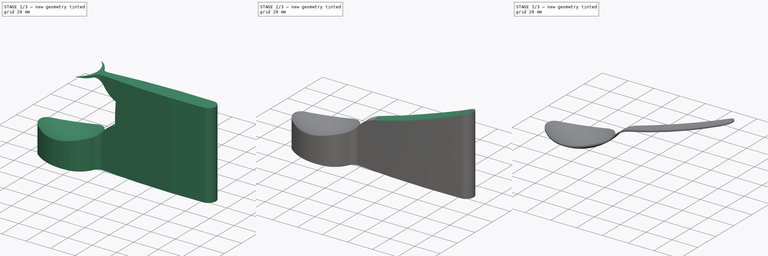
[diagram: build sequence overview — one tinted view per stage of 3, left to right]
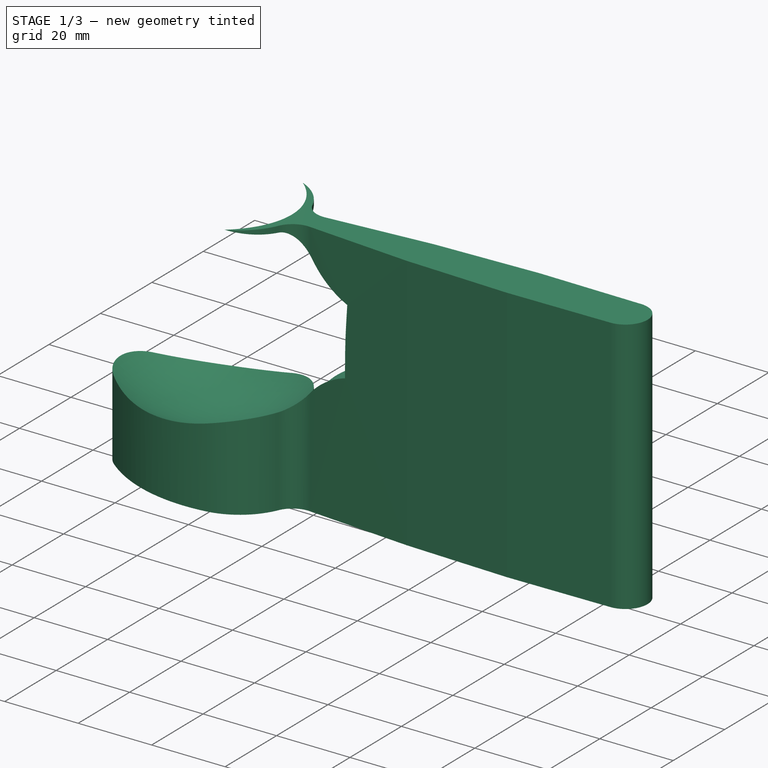
[diagram: stage 1 of 3 — iso view after this stage's code; geometry added in this stage tinted green]
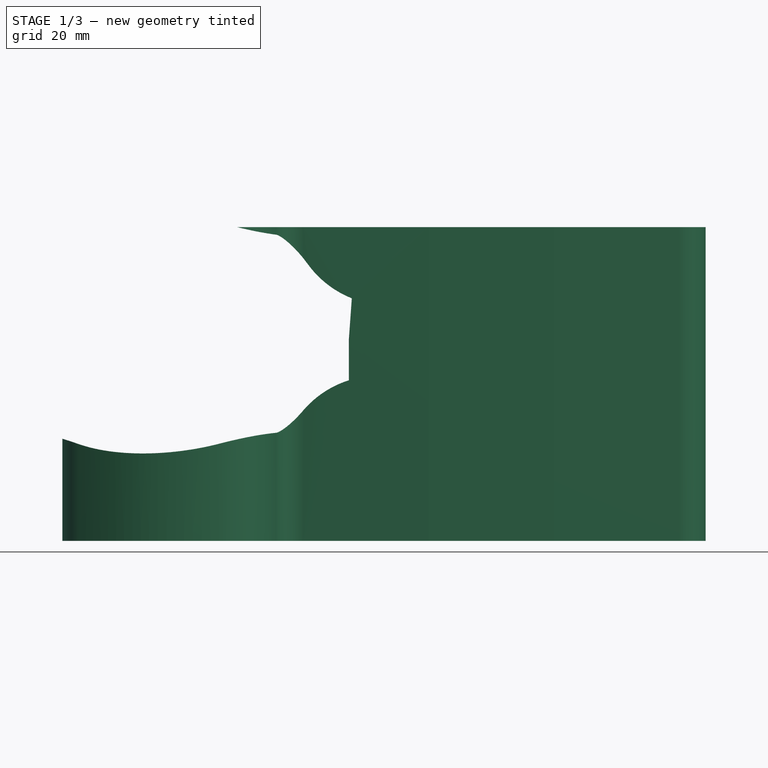
[diagram: stage 1 of 3 — front view after this stage's code; geometry added in this stage tinted green]
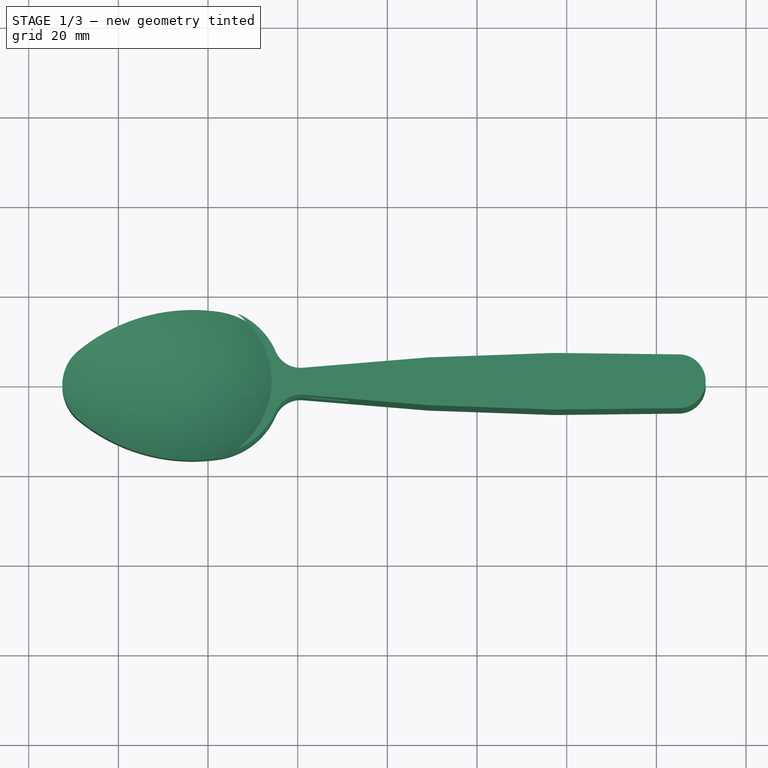
[diagram: stage 1 of 3 — top view after this stage's code; geometry added in this stage tinted green]
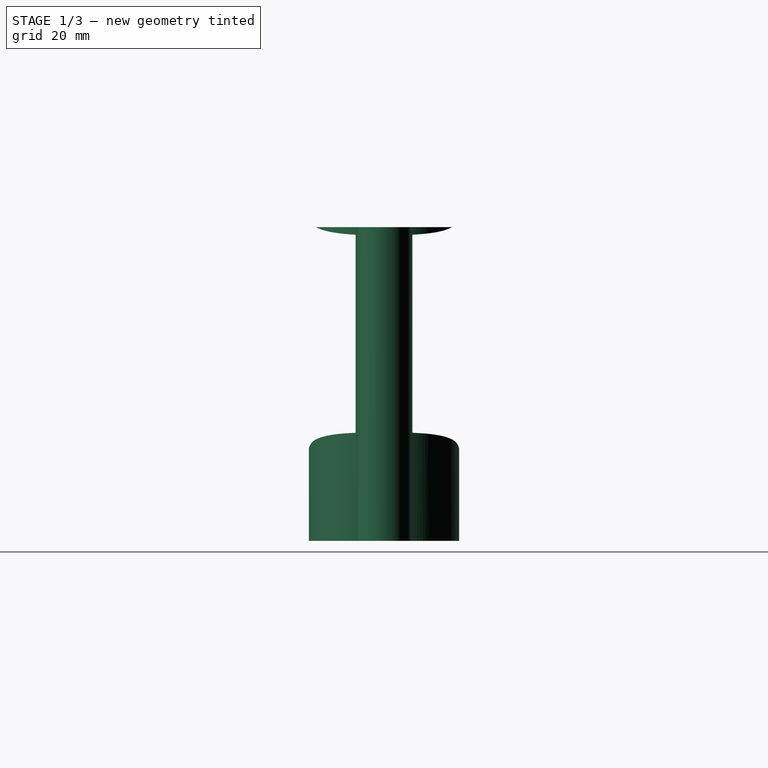
[diagram: stage 1 of 3 — right view after this stage's code; geometry added in this stage tinted green]
FCSTD DOCUMENT  (FreeCAD 0.17R13509 (Git))
Label: p
License: All rights reserved
LicenseURL: http://en.wikipedia.org/wiki/All_rights_reserved
objects: Sketcher::SketchObject×7, PartDesign::Groove×2, PartDesign::Pad×1, PartDesign::Body×1, PartDesign::FeatureBase×1, Part::Cut×1
note: 16 computed .brp shape members not serialized (recipe doc carries the construction recipe); baked Part::Feature solids carry a one-line shape summary decoded from their .brp

FEATURE [Sketcher::SketchObject] Sketch
  MapMode = 5
  Support = -> [XY_Plane]
  sketch-geometry (10):
    g0: ArcOfCircle CenterX=-22.5 CenterY=0 CenterZ=0 NormalX=0 NormalY=0 NormalZ=1 AngleXU=0 Radius=10 StartAngle=2.25569 EndAngle=4.02749
    g1: ArcOfCircle CenterX=-3.52222 CenterY=-23.2345 CenterZ=0 NormalX=0 NormalY=0 NormalZ=1 AngleXU=0 Radius=40 StartAngle=1.42035 EndAngle=2.25569
    g2: ArcOfCircle CenterX=-3.52222 CenterY=23.2345 CenterZ=0 NormalX=0 NormalY=0 NormalZ=1 AngleXU=0 Radius=40 StartAngle=4.02749 EndAngle=4.86284
    g3: ArcOfCircle CenterX=0 CenterY=0 CenterZ=0 NormalX=0 NormalY=0 NormalZ=1 AngleXU=0 Radius=16.5 StartAngle=0.411517 EndAngle=1.42035
    g4: ArcOfCircle CenterX=0 CenterY=0 CenterZ=0 NormalX=0 NormalY=0 NormalZ=1 AngleXU=0 Radius=16.5 StartAngle=4.86284 EndAngle=5.87167
    g5: ArcOfCircle CenterX=20.6216 CenterY=9 CenterZ=0 NormalX=0 NormalY=0 NormalZ=1 AngleXU=0 Radius=6 StartAngle=3.55311 EndAngle=4.81773
    g6: ArcOfCircle CenterX=20.6216 CenterY=-9 CenterZ=0 NormalX=0 NormalY=0 NormalZ=1 AngleXU=0 Radius=6 StartAngle=1.46545 EndAngle=2.73008
    g7: ArcOfCircle CenterX=84.3416 CenterY=-593.641 CenterZ=0 NormalX=0 NormalY=0 NormalZ=1 AngleXU=0 Radius=600 StartAngle=1.53601 EndAngle=1.67614
    g8: ArcOfCircle CenterX=84.3416 CenterY=593.641 CenterZ=0 NormalX=0 NormalY=0 NormalZ=1 AngleXU=0 Radius=600 StartAngle=4.60705 EndAngle=4.74717
    g9: ArcOfCircle CenterX=105 CenterY=0 CenterZ=0 NormalX=0 NormalY=0 NormalZ=1 AngleXU=0 Radius=6 StartAngle=4.74717 EndAngle=7.8192
  constraints (27):
    c: PointOnObject(g0,g-1)
    c: Coincident(g3,g-1)
    c: Coincident(g4,g-1)
    c: Radius(g0) = 10
    c: Radius(g1) = 40
    c: Equal(g1,g2)
    c: Tangent(g1,g0) = -1.5708
    c: Tangent(g0,g2) = -1.5708
    c: Radius(g3) = 16.5
    c: Equal(g3,g4)
    c: Tangent(g3,g1) = -1.5708
    c: Tangent(g2,g4) = -1.5708
    c: Tangent(g4,g6) = 1.5708
    c: Tangent(g5,g3) = 1.5708
    c: Radius(g7) = 600
    c: Equal(g7,g8)
    c: Tangent(g5,g7) = 1.5708
    c: Tangent(g6,g8) = 1.5708
    c: Radius(g9) = 6
    c: Tangent(g9,g7) = -1.5708
    c: Tangent(g8,g9) = -1.5708
    c: Vertical(g6,g5)
    c: Symmetric(g5,g6,g-1)
    c: Radius(g5) = 6
    c: DistanceX(g-1,g9) = 105
    c: DistanceX(g0,g-1) = 22.5
    c: DistanceY(g6,g5) = 18
FEATURE [Sketcher::SketchObject] Sketch001
  MapMode = 5
  Placement = pos=(0,0,0) rot=(1,0,0;1.5708rad)
  Support = -> [XZ_Plane]
  sketch-geometry (5):
    g0: ArcOfCircle CenterX=-8.92223 CenterY=20.1123 CenterZ=0 NormalX=0 NormalY=0 NormalZ=1 AngleXU=0 Radius=40 StartAngle=3.89319 EndAngle=4.08202
    g1: ArcOfCircle CenterX=-8.92223 CenterY=20.1123 CenterZ=0 NormalX=0 NormalY=0 NormalZ=1 AngleXU=0 Radius=40 StartAngle=4.08202 EndAngle=4.93734
    g2: ArcOfCircle CenterX=-8.92223 CenterY=20.1123 CenterZ=0 NormalX=0 NormalY=0 NormalZ=1 AngleXU=0 Radius=40 StartAngle=4.93734 EndAngle=5.56395
    g3: ArcOfCircle CenterX=36.2163 CenterY=-19.4164 CenterZ=0 NormalX=0 NormalY=0 NormalZ=1 AngleXU=0 Radius=20 StartAngle=1.81297 EndAngle=2.42235
    g4: ArcOfCircle CenterX=-88.4866 CenterY=485.41 CenterZ=0 NormalX=0 NormalY=0 NormalZ=1 AngleXU=0 Radius=500 StartAngle=4.95456 EndAngle=5.10974
  constraints (17):
    c: Radius(g1) = 40
    c: Equal(g1,g0)
    c: Equal(g1,g2)
    c: Tangent(g0,g1) = -1.5708
    c: Tangent(g2,g1) = -1.5708
    c: Tangent(g3,g2) = 1.5708
    c: Tangent(g3,g4) = 1.5708
    c: PointOnObject(g1,g-2)
    c: DistanceY(g0,g0) = 5
    c: PointOnObject(g3,g-1)
    c: DistanceX(g0,g-1) = 32.5
    c: DistanceX(g1,g3) = 31.42
    c: Radius(g3) = 20
    c: Radius(g4) = 500
    c: DistanceX(g-1,g4) = 105
    c: Distance(g3,g2) = 12
    c: Distance(g2,g0) = 54
FEATURE [Sketcher::SketchObject] Sketch002
  ExternalGeometry = -> [Sketch001]
  MapMode = 5
  Placement = pos=(0,0,0) rot=(0.57735,0.57735,0.57735;2.0944rad)
  Support = -> [YZ_Plane]
  sketch-geometry (1):
    g0: ArcOfCircle CenterX=0 CenterY=11.1201 CenterZ=0 NormalX=0 NormalY=0 NormalZ=1 AngleXU=0 Radius=30 StartAngle=3.89395 EndAngle=5.43355
  constraints (3):
    c: PointOnObject(g0,g-2)
    c: Radius(g0) = 30
    c: PointOnObject(g-3,g0)
FEATURE [Sketcher::SketchObject] Sketch003
  AttachmentOffset = pos=(0,0,31.42) rot=(0,0,1;0rad)
  ExternalGeometry = -> [Sketch001]
  MapMode = 5
  Placement = pos=(31.42,-4e-12,4e-12) rot=(0.57735,0.57735,0.57735;2.0944rad)
  Support = -> [YZ_Plane]
  sketch-geometry (1):
    g0: ArcOfCircle CenterX=0 CenterY=9.66515 CenterZ=0 NormalX=0 NormalY=0 NormalZ=1 AngleXU=0 Radius=10 StartAngle=3.17461 EndAngle=6.29527
  constraints (2):
    c: PointOnObject(g0,g-2)
    c: Radius(g0) = 10
FEATURE [Sketcher::SketchObject] Sketch004
  AttachmentOffset = pos=(0,24.36,105) rot=(0,0,1;0rad)
  MapMode = 5
  Placement = pos=(105,-9e-12,24.36) rot=(0.57735,0.57735,0.57735;2.0944rad)
  Support = -> [YZ_Plane]
  sketch-geometry (2):
    g0: ArcOfCircle CenterX=0 CenterY=40 CenterZ=0 NormalX=0 NormalY=0 NormalZ=1 AngleXU=0 Radius=40 StartAngle=4.2478 EndAngle=5.20035
    g1: GeomPoint X=0 Y=0 Z=0
  constraints (5):
    c: PointOnObject(g0,g-2)
    c: Radius(g0) = 40
    c: PointOnObject(g1,g0)
    c: PointOnObject(g1,g-2)
    c: Coincident(g1,g-1)
FEATURE [PartDesign::Pad] Pad
  Length = 70
  Length2 = 100
  Midplane = true
  Profile = -> Sketch
  Refine = true
  Type = 0
FEATURE [Sketcher::SketchObject] Sketch005
  MapMode = 5
  Placement = pos=(0,0,0) rot=(1,0,0;1.5708rad)
  Support = -> [XZ_Plane]
  sketch-geometry (10):
    g0: ArcOfCircle CenterX=-8.92223 CenterY=20.1123 CenterZ=0 NormalX=0 NormalY=0 NormalZ=1 AngleXU=0 Radius=40 StartAngle=3.89319 EndAngle=4.08202
    g1: ArcOfCircle CenterX=-8.92223 CenterY=20.1123 CenterZ=0 NormalX=0 NormalY=0 NormalZ=1 AngleXU=0 Radius=40 StartAngle=4.08202 EndAngle=4.93734
    g2: ArcOfCircle CenterX=-8.92223 CenterY=20.1123 CenterZ=0 NormalX=0 NormalY=0 NormalZ=1 AngleXU=0 Radius=40 StartAngle=4.93734 EndAngle=5.56395
    g3: ArcOfCircle CenterX=36.2163 CenterY=-19.4164 CenterZ=0 NormalX=0 NormalY=0 NormalZ=1 AngleXU=0 Radius=20 StartAngle=1.81297 EndAngle=2.42235
    g4: ArcOfCircle [constr] CenterX=-88.4866 CenterY=485.41 CenterZ=0 NormalX=0 NormalY=0 NormalZ=1 AngleXU=0 Radius=500 StartAngle=4.95456 EndAngle=5.10974
    g5: LineSegment StartX=-38.1461 StartY=-7.20006 StartZ=0 EndX=-38.1461 EndY=12.4799 EndZ=0
    g6: LineSegment StartX=-38.1461 StartY=12.4799 StartZ=0 EndX=31.42 EndY=10 EndZ=0
    g7: LineSegment StartX=31.42 StartY=0 StartZ=0 EndX=31.42 EndY=10 EndZ=0
    g8: GeomPoint X=0 Y=11.1201 Z=0
    g9: LineSegment [constr] StartX=31.42 StartY=10 StartZ=0 EndX=43.26 EndY=9.57792 EndZ=0
  constraints (29):
    c: Radius(g1) = 40
    c: Equal(g1,g0)
    c: Equal(g1,g2)
    c: Tangent(g0,g1) = -1.5708
    c: Tangent(g2,g1) = -1.5708
    c: Tangent(g3,g2) = 1.5708
    c: Tangent(g3,g4) = 1.5708
    c: PointOnObject(g1,g-2)
    c: DistanceY(g0,g0) = 5
    c: PointOnObject(g3,g-1)
    c: DistanceX(g0,g-1) = 32.5
    c: DistanceX(g1,g3) = 31.42
    c: Radius(g3) = 20
    c: Radius(g4) = 500
    c: DistanceX(g-1,g4) = 105
    c: Distance(g3,g2) = 12
    c: Distance(g2,g0) = 54
    c: Coincident(g5,g0)
    c: Vertical(g5)
    c: Coincident(g6,g5)
    c: Coincident(g7,g3)
    c: Coincident(g7,g6)
    c: Vertical(g7)
    c: DistanceY(g7,g7) = 10
    c: PointOnObject(g8,g6)
    c: PointOnObject(g8,g-2)
    c: DistanceY(g1,g8) = 30
    c: Tangent(g9,g6) = -1.5708
    c: DistanceX(g9,g9) = 11.84
FEATURE [PartDesign::Groove] Groove
  Angle = 360
  Axis = (11.84,0,-0.422077)
  Base = (31.42,-1e-12,10)
  BaseFeature = -> Pad
  Profile = -> Sketch005
  ReferenceAxis = -> Sketch005 [Axis0]
  Refine = true
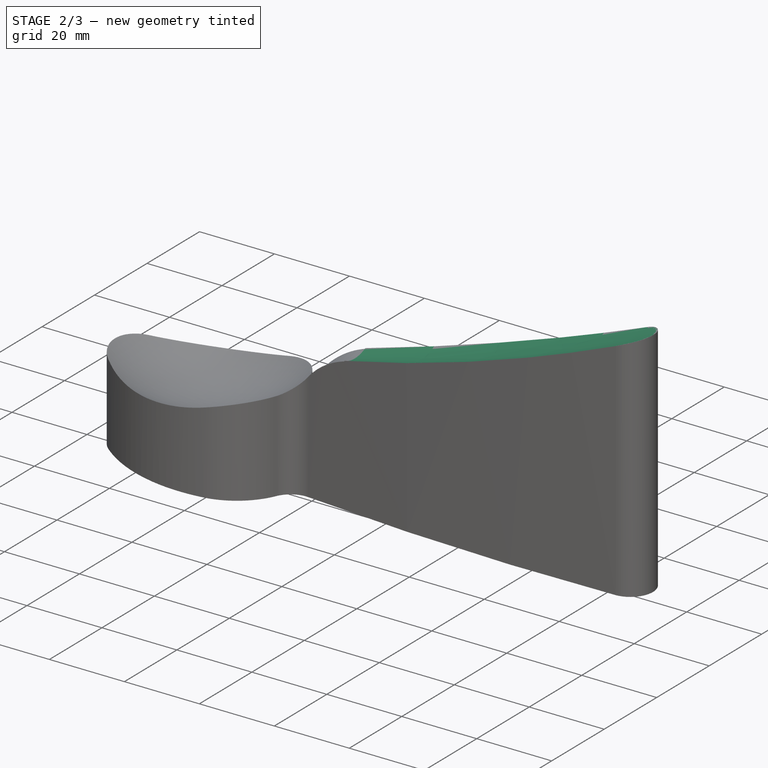
[diagram: stage 2 of 3 — iso view after this stage's code; geometry added in this stage tinted green]
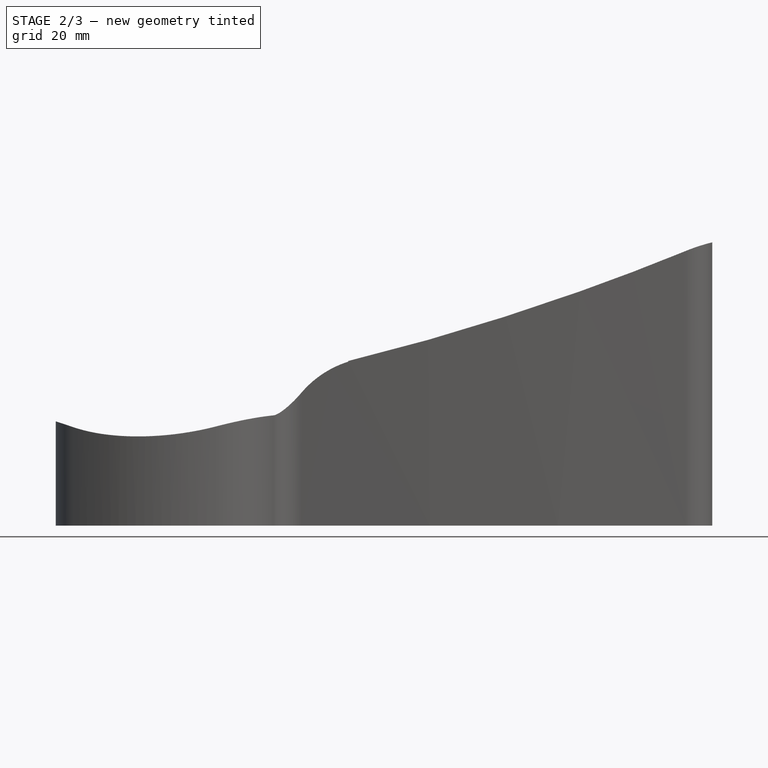
[diagram: stage 2 of 3 — front view after this stage's code; geometry added in this stage tinted green]
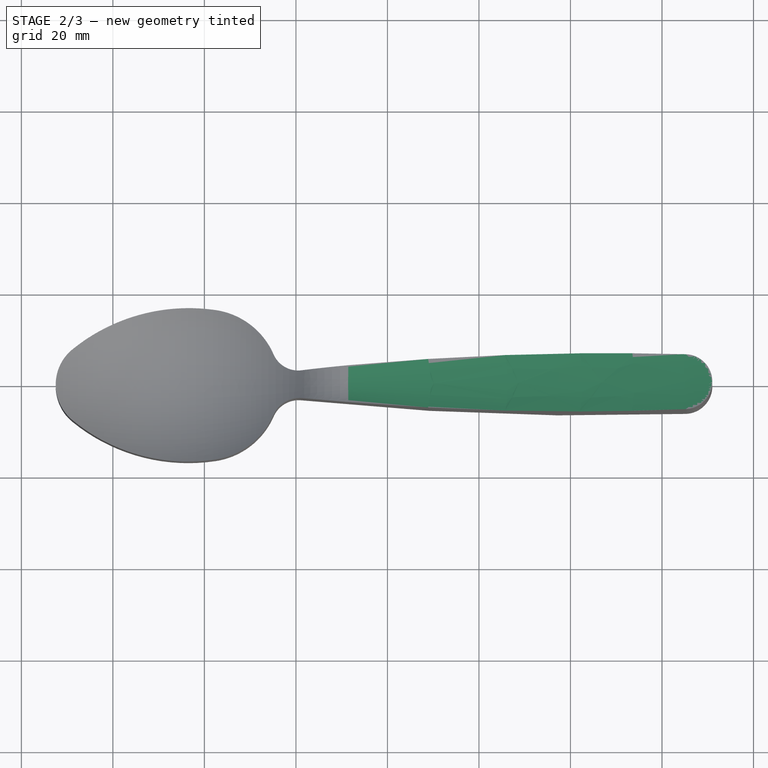
[diagram: stage 2 of 3 — top view after this stage's code; geometry added in this stage tinted green]
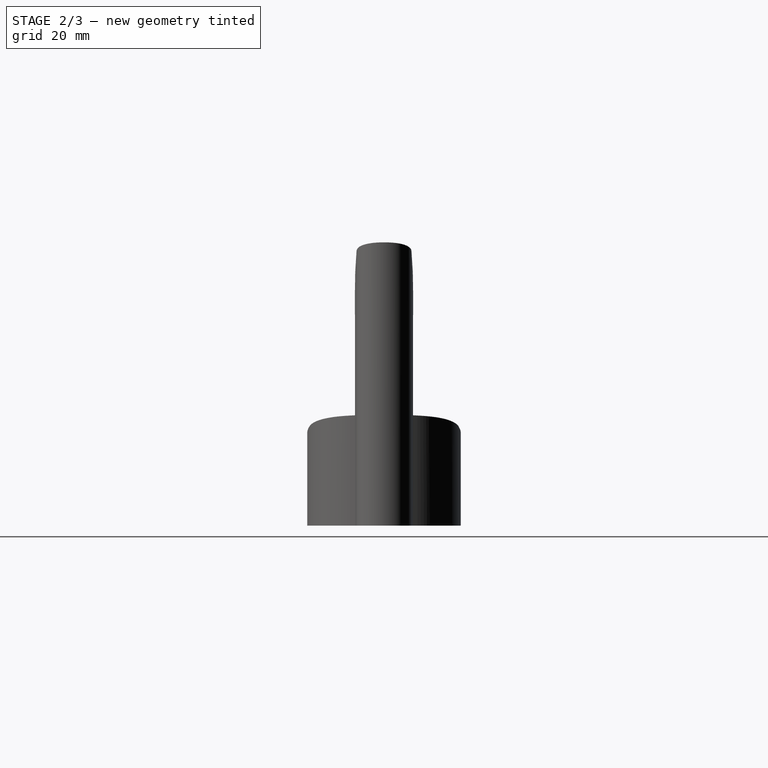
[diagram: stage 2 of 3 — right view after this stage's code; geometry added in this stage tinted green]
FEATURE [Sketcher::SketchObject] Sketch006
  ExternalGeometry = -> [Sketch003]
  MapMode = 5
  Placement = pos=(0,0,0) rot=(1,0,0;1.5708rad)
  Support = -> [XZ_Plane]
  sketch-geometry (12):
    g0: ArcOfCircle [constr] CenterX=-8.92223 CenterY=20.1123 CenterZ=0 NormalX=0 NormalY=0 NormalZ=1 AngleXU=0 Radius=40 StartAngle=3.89319 EndAngle=4.08202
    g1: ArcOfCircle [constr] CenterX=-8.92223 CenterY=20.1123 CenterZ=0 NormalX=0 NormalY=0 NormalZ=1 AngleXU=0 Radius=40 StartAngle=4.08202 EndAngle=4.93734
    g2: ArcOfCircle [constr] CenterX=-8.92223 CenterY=20.1123 CenterZ=0 NormalX=0 NormalY=0 NormalZ=1 AngleXU=0 Radius=40 StartAngle=4.93734 EndAngle=5.56395
    g3: ArcOfCircle CenterX=36.2163 CenterY=-19.4164 CenterZ=0 NormalX=0 NormalY=0 NormalZ=1 AngleXU=0 Radius=20 StartAngle=1.81297 EndAngle=2.42235
    g4: ArcOfCircle CenterX=-88.4866 CenterY=485.41 CenterZ=0 NormalX=0 NormalY=0 NormalZ=1 AngleXU=0 Radius=500 StartAngle=4.95456 EndAngle=5.10974
    g5: LineSegment StartX=21.1701 StartY=-6.24015 StartZ=0 EndX=21.1701 EndY=2.42694 EndZ=0
    g6: LineSegment StartX=21.1701 StartY=2.42694 StartZ=0 EndX=137.46 EndY=88.3469 EndZ=0
    g7: ArcOfCircle CenterX=-88.4866 CenterY=485.41 CenterZ=0 NormalX=0 NormalY=0 NormalZ=1 AngleXU=0 Radius=500 StartAngle=5.10974 EndAngle=5.18128
    g8: GeomPoint X=105 Y=64.364 Z=0
    g9: LineSegment StartX=137.46 StartY=88.3469 StartZ=0 EndX=137.46 EndY=39.3735 EndZ=0
    g10: LineSegment [constr] StartX=31.42 StartY=10 StartZ=0 EndX=31.42 EndY=0 EndZ=0
    g11: LineSegment [constr] StartX=21.1701 StartY=2.42694 StartZ=0 EndX=13.5615 EndY=-3.19459 EndZ=0
  constraints (37):
    c: Radius(g1) = 40
    c: Equal(g1,g0)
    c: Equal(g1,g2)
    c: Tangent(g0,g1) = -1.5708
    c: Tangent(g2,g1) = -1.5708
    c: Tangent(g3,g2) = 1.5708
    c: Tangent(g3,g4) = 1.5708
    c: PointOnObject(g1,g-2)
    c: DistanceY(g0,g0) = 5
    c: PointOnObject(g3,g-1)
    c: DistanceX(g0,g-1) = 32.5
    c: DistanceX(g1,g3) = 31.42
    c: Radius(g3) = 20
    c: Radius(g4) = 500
    c: DistanceX(g-1,g4) = 105
    c: Distance(g3,g2) = 12
    c: Distance(g2,g0) = 54
    c: Coincident(g5,g2)
    c: Vertical(g5)
    c: Coincident(g6,g5)
    c: Radius(g7) = 500
    c: Tangent(g7,g4) = -1.5708
    c: PointOnObject(g8,g6)
    c: Vertical(g8,g4)
    c: DistanceY(g4,g8) = 40
    c: Vertical(g9)
    c: Coincident(g6,g9)
    c: Coincident(g9,g7)
    c: PointOnObject(g10,g6)
    c: Vertical(g10)
    c: PointOnObject(g10,g4)
    c: PointOnObject(g10,g-1)
    c: DistanceY(g10,g10) = 10
    c: Coincident(g11,g5)
    c: Tangent(g11,g6)
    c: Distance(g11) = 9.46
    c: DistanceX(g4,g7) = 32.46
FEATURE [PartDesign::Groove] Groove001
  Angle = 360
  Axis = (-7.60855,1e-12,-5.62152)
  Base = (21.1701,0,2.42694)
  BaseFeature = -> Groove
  Profile = -> Sketch006
  ReferenceAxis = -> Sketch006 [Axis1]
  Refine = true
  Reversed = true
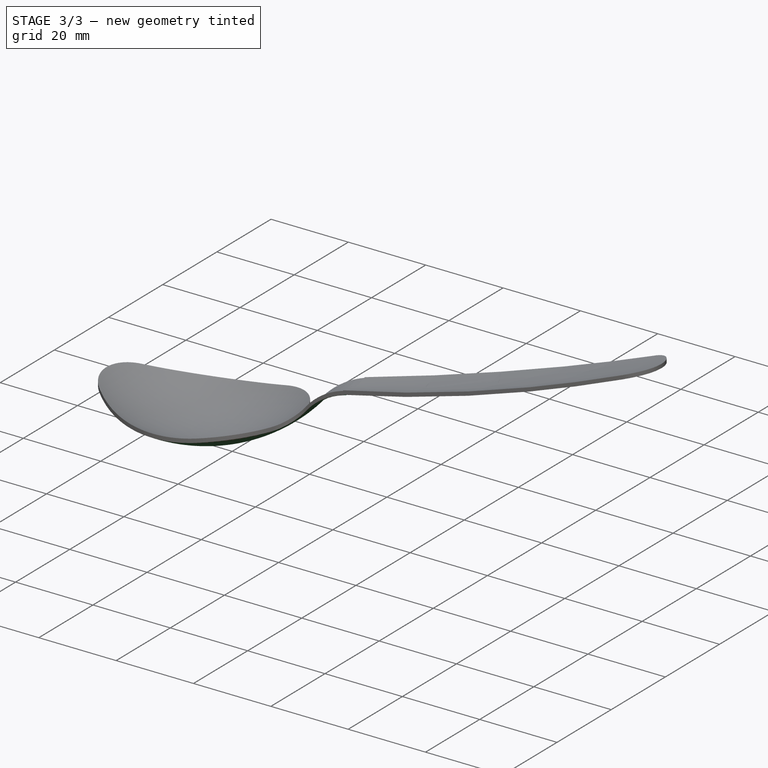
[diagram: stage 3 of 3 — iso view after this stage's code; geometry added in this stage tinted green]
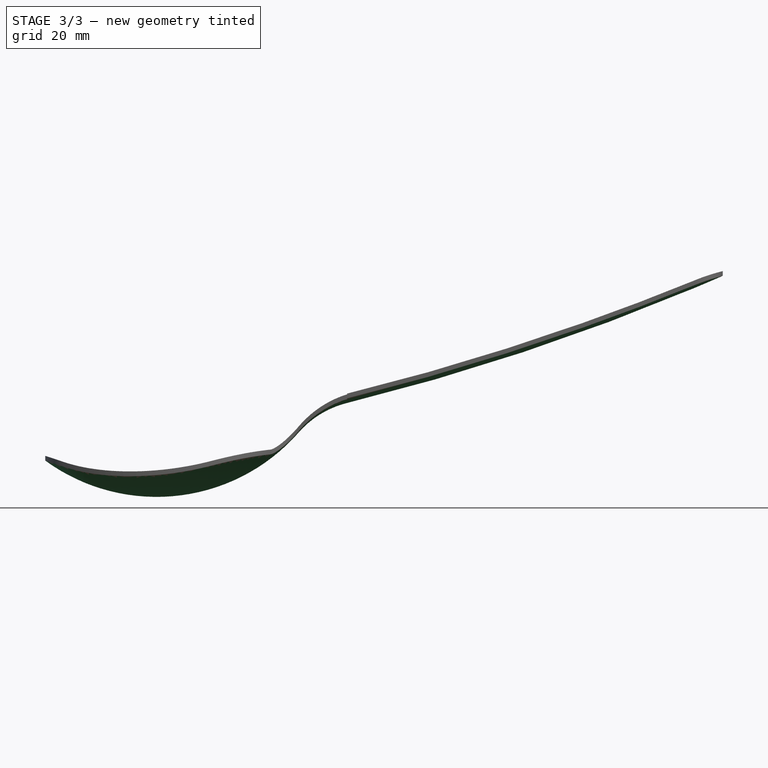
[diagram: stage 3 of 3 — front view after this stage's code; geometry added in this stage tinted green]
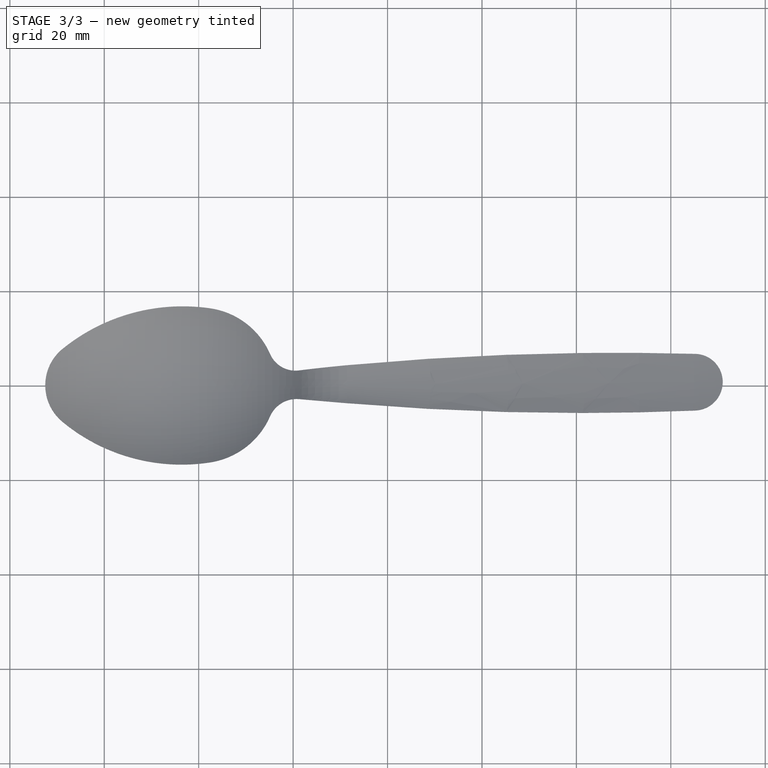
[diagram: stage 3 of 3 — top view after this stage's code; geometry added in this stage tinted green]
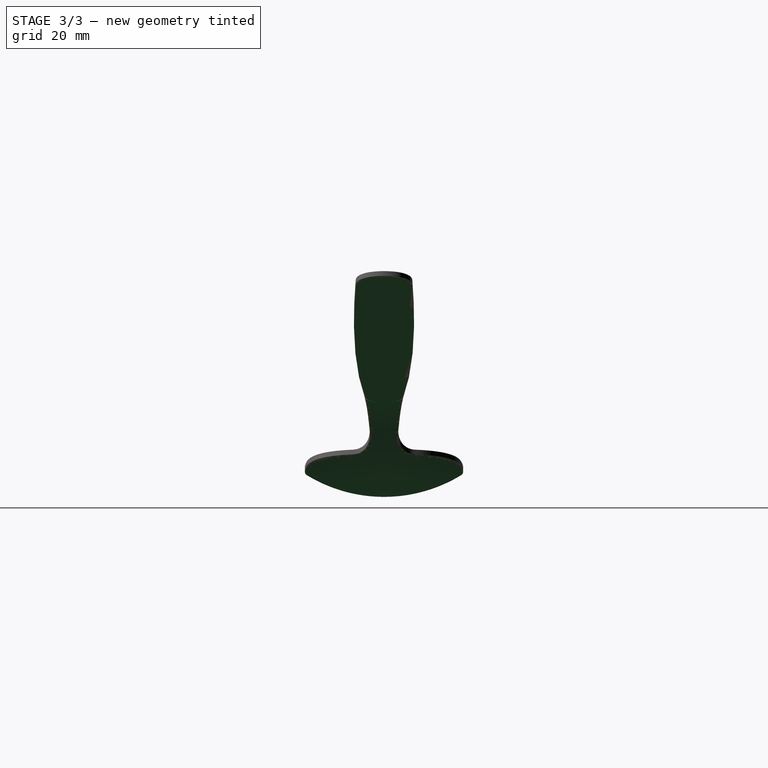
[diagram: stage 3 of 3 — right view after this stage's code; geometry added in this stage tinted green]
FEATURE [PartDesign::Body] Body
  Group = -> [Sketch,Sketch001,Sketch002,Sketch003,Sketch004,Pad,Sketch005,Groove,Sketch006,Groove001]
  Origin = -> Origin
  Tip = -> Groove001
FEATURE [PartDesign::FeatureBase] Clone
  BaseFeature = -> Groove001
  Placement = pos=(0,0,-1) rot=(0,0,1;0rad)
FEATURE [Part::Cut] Cut
  Base = -> Groove001
  Refine = true
  Tool = -> Clone
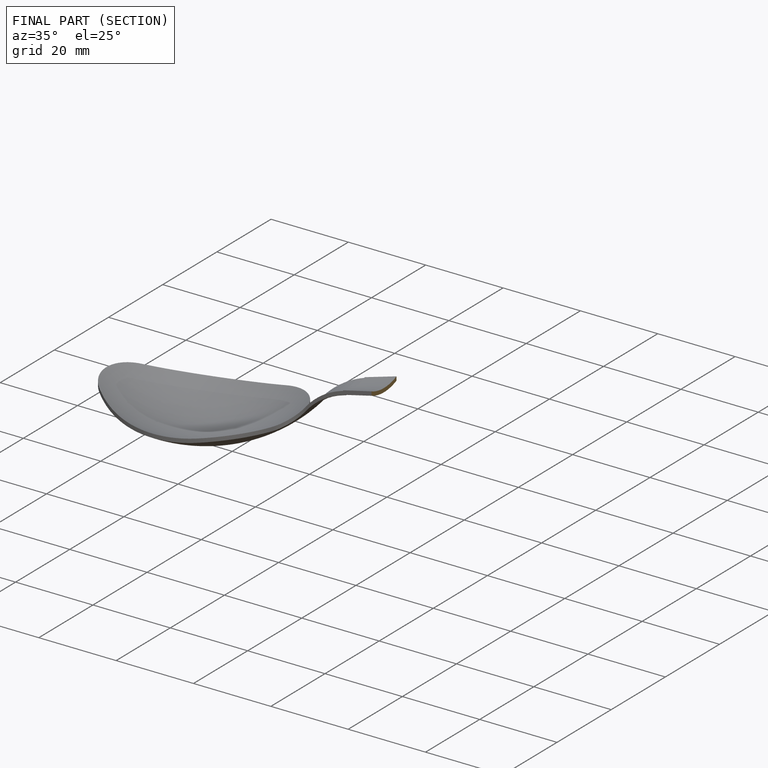
[diagram: finished part — half-section view (interior)]
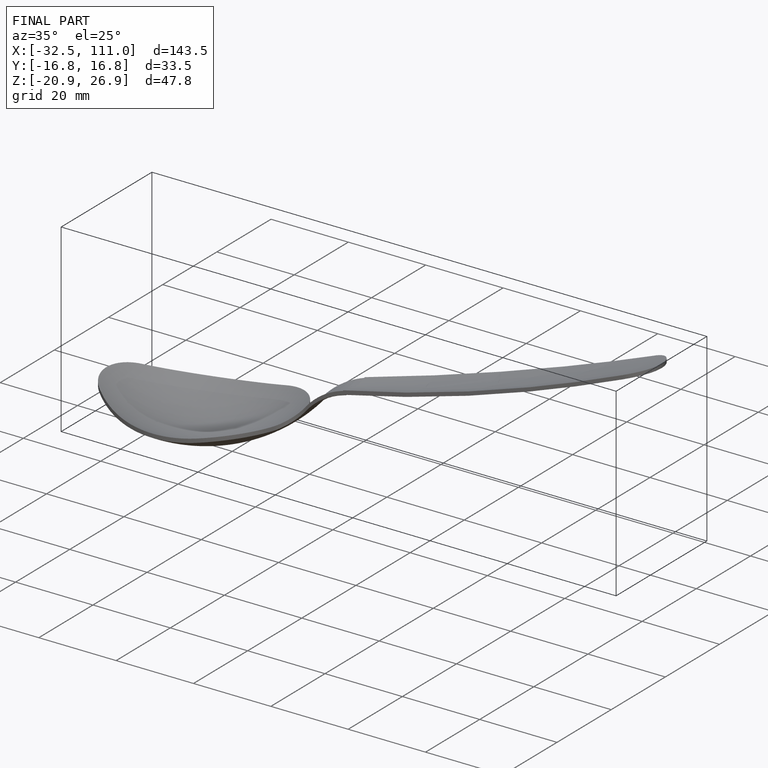
[diagram: finished part — iso view with bounding-box wireframe]
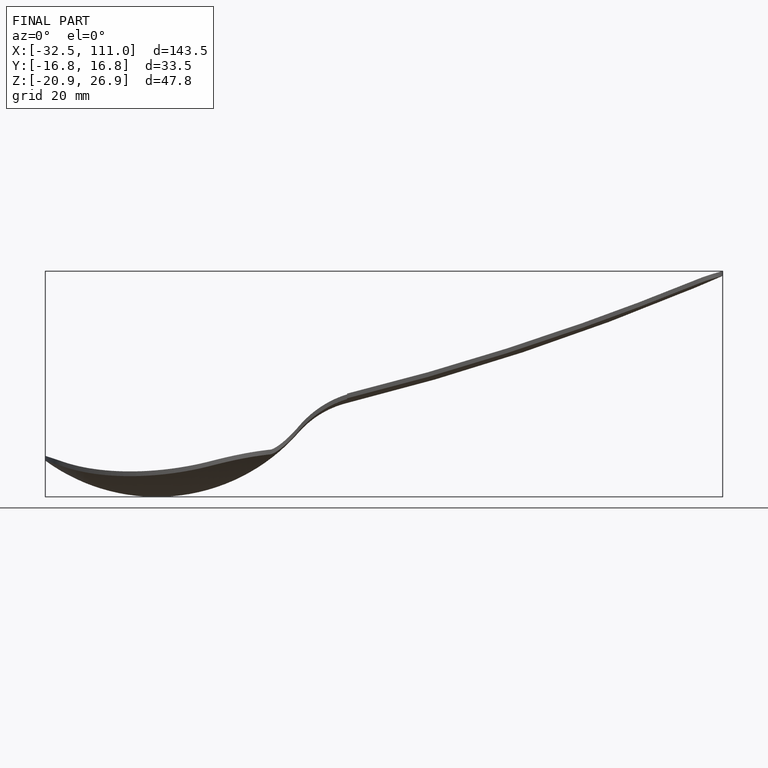
[diagram: finished part — front view with bounding-box wireframe]
